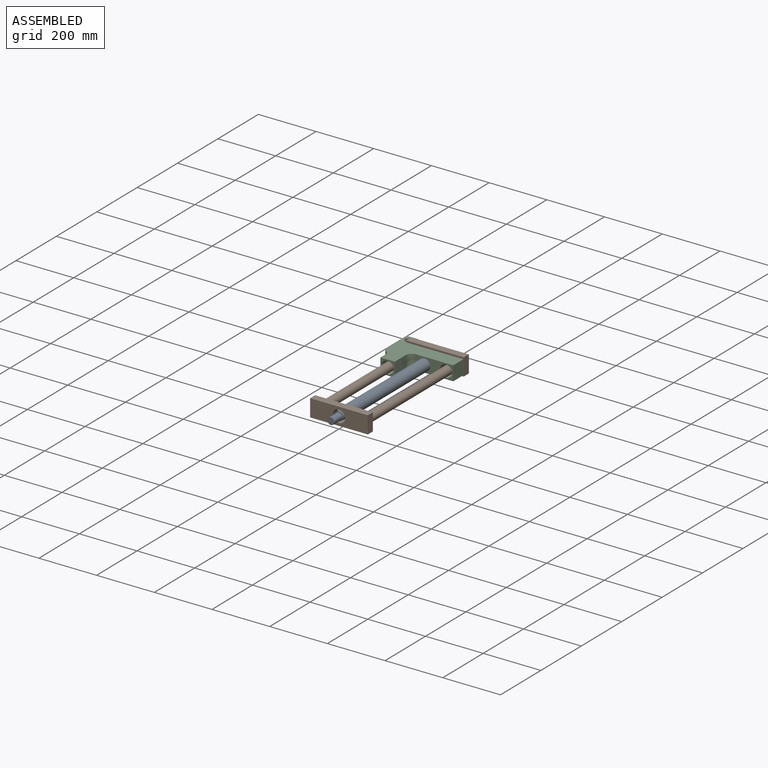
[diagram: assembled view]
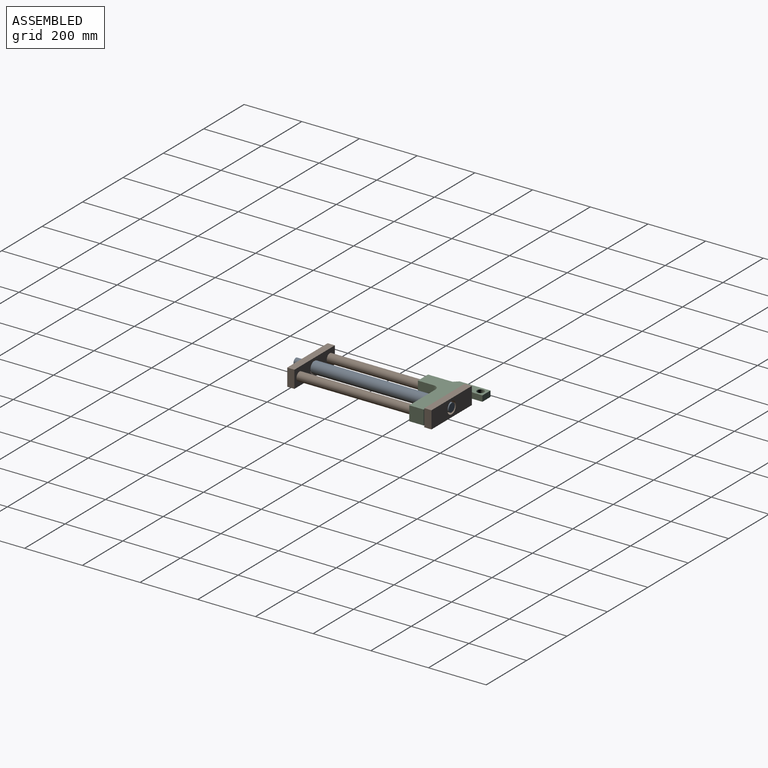
[diagram: assembled view, second angle]
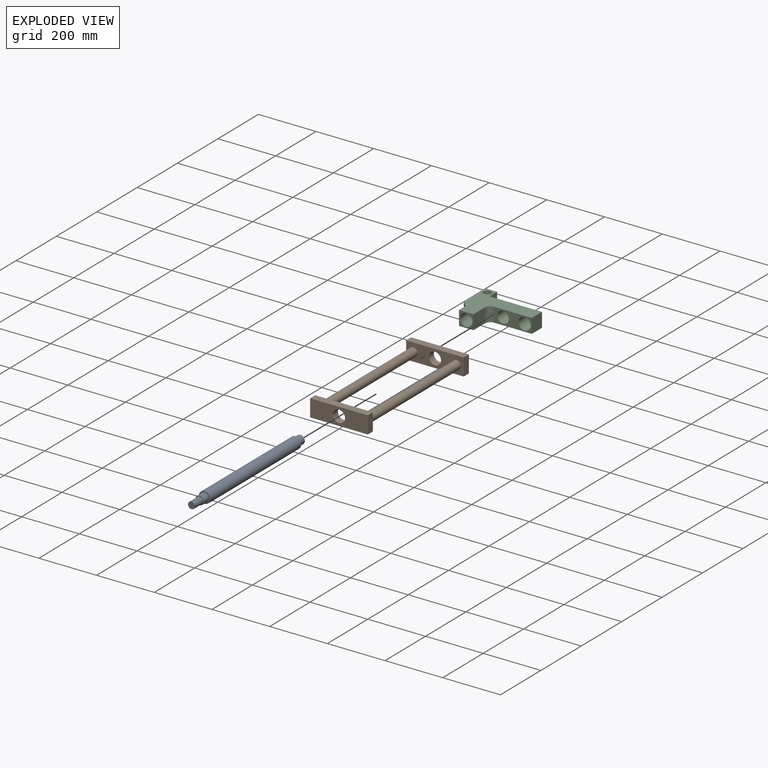
[diagram: exploded view]
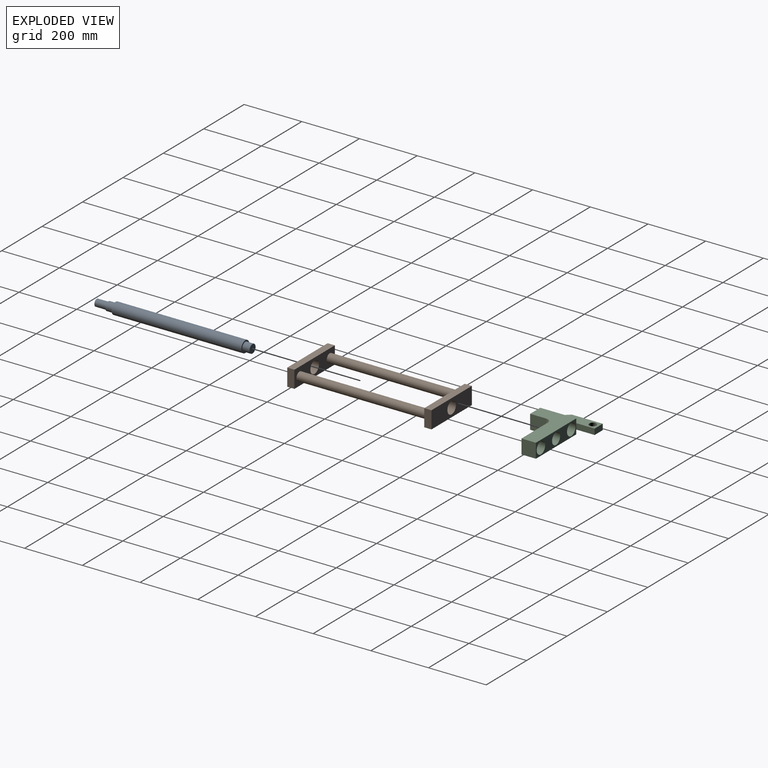
[diagram: exploded view, second angle]
ASSEMBLY  parts=3 mates=3
PART A: 9 faces, bbox 40x540x40 mm
  f0: plane 30x30mm, normal (0,-1,0), area 254.5mm2, adj f1,f8
  f1: cylinder r=12mm len=40mm, axis (0,-1,0), area 3015.9mm2, adj f0,f2
  f2: plane 24x24mm, normal (0,-1,0), area 452.4mm2, adj f1
  f3: plane 30x30mm, normal (0,1,0), area 706.9mm2, adj f4
  f4: cylinder r=15mm len=30mm, axis (0,-1,0), area 2356.2mm2, adj f3,f5
  f5: plane 40x40mm, normal (0,1,0), area 549.8mm2, adj f4,f6
  f6: cylinder r=20mm len=450mm, axis (0,-1,0), area 56548.7mm2, adj f5,f7
  f7: plane 40x40mm, normal (0,-1,0), area 549.8mm2, adj f6,f8
  f8: cylinder r=15mm len=30mm, axis (0,-1,0), area 2356.2mm2, adj f0,f7
PART B: 16 faces, bbox 200x500x60 mm
  f0: plane 200x25mm, normal (0,0,-1), area 5000mm2, adj f1,f4,f5,f6
  f1: plane 60x25mm, normal (1,0,0), area 1500mm2, adj f0,f2,f5,f6
  f2: plane 200x25mm, normal (0,0,1), area 5000mm2, adj f1,f4,f5,f6
  f3: cylinder r=21mm len=42mm, axis (0,1,0), area 3298.7mm2, adj f5,f6
  f4: plane 60x25mm, normal (-1,0,0), area 1500mm2, adj f0,f2,f5,f6
  f5: plane 200x60mm, normal (0,-1,0), area 9200.8mm2, adj f0,f1,f2,f3,f4,f7,f8
  f6: plane 200x60mm, normal (0,1,0), area 10614.6mm2, adj f0,f1,f2,f3,f4
  f7: cylinder r=15mm len=450mm, axis (0,1,0), area 42411.5mm2, adj f5,f14
  f8: cylinder r=15mm len=450mm, axis (0,1,0), area 42411.5mm2, adj f5,f14
  f9: plane 200x25mm, normal (0,0,-1), area 5000mm2, adj f10,f13,f14,f15
  f10: plane 60x25mm, normal (1,0,0), area 1500mm2, adj f9,f11,f14,f15
  f11: plane 200x25mm, normal (0,0,1), area 5000mm2, adj f10,f13,f14,f15
  f12: cylinder r=21mm len=42mm, axis (0,-1,0), area 3298.7mm2, adj f14,f15
  f13: plane 60x25mm, normal (-1,0,0), area 1500mm2, adj f9,f11,f14,f15
  f14: plane 200x60mm, normal (0,1,0), area 9200.8mm2, adj f7,f8,f9,f10,f11,f12,f13
  f15: plane 200x60mm, normal (0,-1,0), area 10614.6mm2, adj f9,f10,f11,f12,f13
PART C: 19 faces, bbox 188.6x240x50 mm
  f0: plane 125x50mm, normal (0,1,0), area 4490.7mm2, adj f1,f6,f7,f8,f15,f17,f18
  f1: plane 50x50mm, normal (-1,0,0), area 1114.6mm2, adj f0,f2,f7,f8,f11
  f2: plane 55x50mm, normal (0,-1,0), area 2750mm2, adj f1,f3,f7,f8
  f3: cylinder r=20mm len=50mm, axis (0,0,-1), area 1570.8mm2, adj f2,f4,f7,f8
  f4: plane 130x50mm, normal (-1,0,0), area 3857.9mm2, adj f3,f5,f7,f8,f9,f10
  f5: plane 50x50mm, normal (0,-1,0), area 2500mm2, adj f4,f6,f7,f8
  f6: plane 200x50mm, normal (1,0,0), area 5972.5mm2, adj f0,f5,f7,f8,f9,f10,f11,f12
  f7: plane 200x125mm, normal (0,0,1), area 13835.8mm2, adj f0,f1,f2,f3,f4,f5,f6
  f8: plane 200x125mm, normal (0,0,-1), area 13835.8mm2, adj f0,f1,f2,f3,f4,f5,f6
  f9: cylinder r=20mm len=50mm, axis (1,0,0), area 6283.2mm2, adj f4,f6
  f10: cylinder r=21mm len=50mm, axis (1,0,0), area 6597.3mm2, adj f4,f6
  f11: cylinder r=21mm len=125mm, axis (1,0,0), area 16493.4mm2, adj f1,f6
  f12: plane 63.6x20mm, normal (0,-1,0), area 1272mm2, adj f6,f13,f17,f18
  f13: plane 40x20mm, normal (1,0,0), area 800mm2, adj f12,f14,f17,f18
  f14: plane 107.18x20mm, normal (0,1,0), area 2143.5mm2, adj f13,f15,f17,f18
  f15: plane 44.38x40mm, normal (-0.67,0.74,0), area 1195mm2, adj f0,f14,f17,f18
  f16: cylinder r=12.5mm len=25mm, axis (0,0,-1), area 1570.8mm2, adj f17,f18
  f17: plane 151.56x40mm, normal (0,0,1), area 4683.9mm2, adj f0,f12,f13,f14,f15,f16
  f18: plane 151.56x40mm, normal (0,0,-1), area 4683.9mm2, adj f0,f12,f13,f14,f15,f16
PLACE A rot(axis=(0,-1,0),90deg) t=(0,0,0)mm
PLACE B rot(axis=(1,0,0),180deg) t=(0,0,0)mm
PLACE C rot(axis=(0,0,1),90deg) t=(0,473.02,0)mm
MATE cylindrical C.f11 <-> B.f7  axis (0,1,0) through (-75,473.02,0)mm
MATE revolute B.f3 <-> A.f1  axis (0,1,0) through (0,0,0)mm
MATE slider A.f1 <-> C.f9  axis (0,-1,0) through (0,250,0)mm
